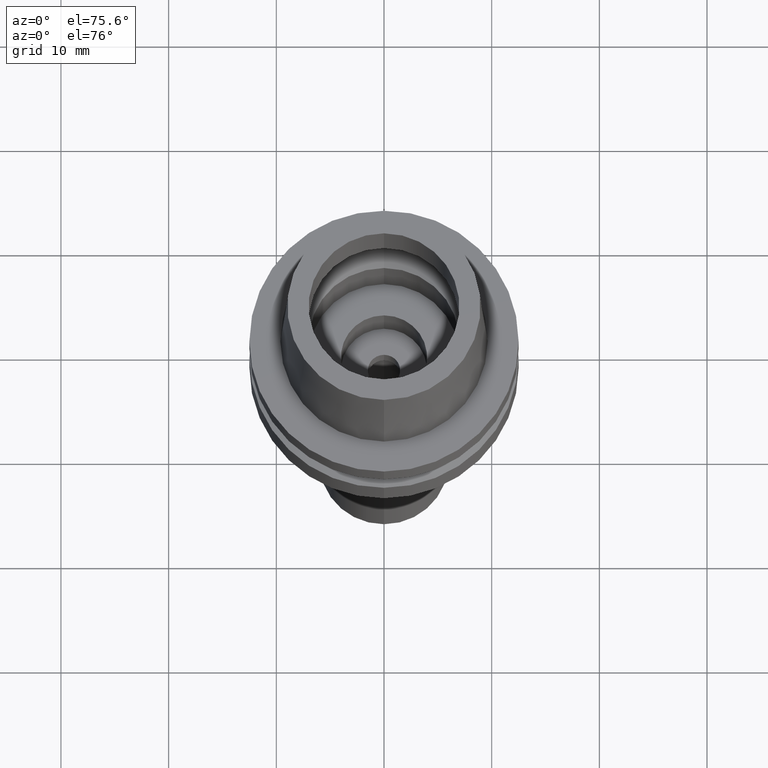
[diagram: clean part render]
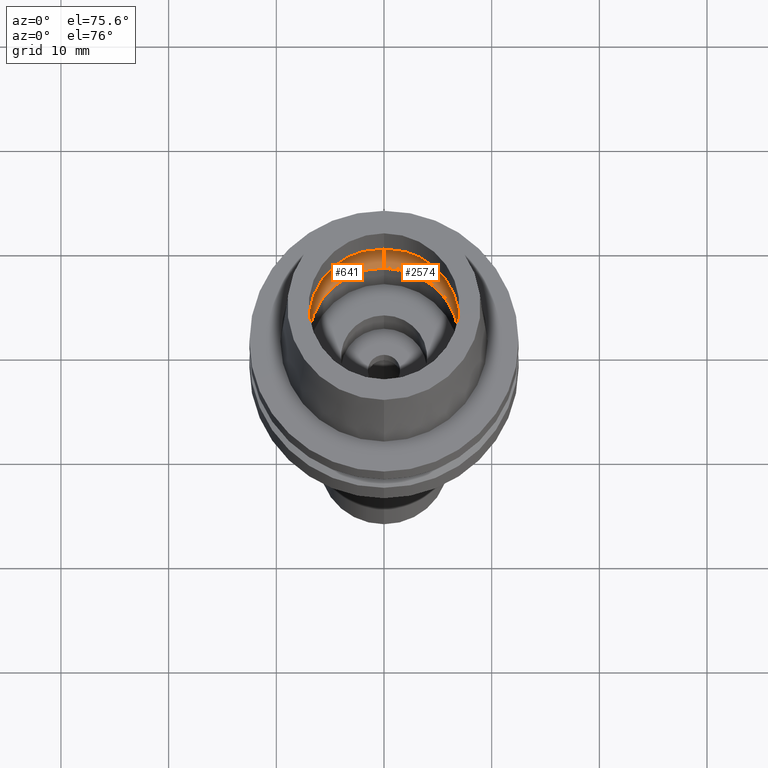
[diagram: same view with one multi-face feature highlighted, each face labeled with its STEP entity id]
A machine part, auxiliary view. The highlighted faces form ONE feature: a constant-radius fillet chain: 2 tangent blend faces with common blend radius 3 mm. The faces share edges in the B-rep.
Their STEP definitions:
[1] entity #641 (Torus):
#14 = ORIENTED_EDGE ( 'NONE', *, *, #1913, .F. ) ;
#164 = DIRECTION ( 'NONE',  ( 0.0000000000000000000, 0.0000000000000000000, 1.000000000000000000 ) ) ;
#183 = VERTEX_POINT ( 'NONE', #2657 ) ;
#197 = CARTESIAN_POINT ( 'NONE',  ( 0.0000000000000000000, 0.0000000000000000000, 2.449999999999999734 ) ) ;
#253 = EDGE_CURVE ( 'NONE', #183, #1187, #1900, .T. ) ;
#318 = CIRCLE ( 'NONE', #1459, 3.000000000000000000 ) ;
#401 = VERTEX_POINT ( 'NONE', #2530 ) ;
#436 = DIRECTION ( 'NONE',  ( 0.0000000000000000000, 0.0000000000000000000, 1.000000000000000000 ) ) ;
#570 = ORIENTED_EDGE ( 'NONE', *, *, #253, .F. ) ;
#641 = ADVANCED_FACE ( 'NONE', ( #1247 ), #1249, .F. ) ;
#731 = CARTESIAN_POINT ( 'NONE',  ( 0.0000000000000000000, -7.000000000000000000, 0.05000000000000000278 ) ) ;
#735 = CARTESIAN_POINT ( 'NONE',  ( 0.0000000000000000000, -8.200000000000001066, 2.449999999999999734 ) ) ;
#745 = DIRECTION ( 'NONE',  ( 1.000000000000000000, 0.0000000000000000000, 0.0000000000000000000 ) ) ;
#974 = EDGE_LOOP ( 'NONE', ( #1175, #14, #570, #1112 ) ) ;
#1023 = DIRECTION ( 'NONE',  ( 0.0000000000000000000, 1.000000000000000000, 0.0000000000000000000 ) ) ;
#1036 = AXIS2_PLACEMENT_3D ( 'NONE', #1992, #745, #1801 ) ;
#1048 = EDGE_CURVE ( 'NONE', #183, #401, #1861, .T. ) ;
#1112 = ORIENTED_EDGE ( 'NONE', *, *, #1048, .T. ) ;
#1131 = EDGE_CURVE ( 'NONE', #2453, #401, #1549, .T. ) ;
#1175 = ORIENTED_EDGE ( 'NONE', *, *, #1131, .F. ) ;
#1178 = DIRECTION ( 'NONE',  ( 0.0000000000000000000, 0.0000000000000000000, -1.000000000000000000 ) ) ;
#1187 = VERTEX_POINT ( 'NONE', #731 ) ;
#1247 = FACE_OUTER_BOUND ( 'NONE', #974, .T. ) ;
#1249 = TOROIDAL_SURFACE ( 'NONE', #2124, 5.200000000000000178, 3.000000000000000000 ) ;
#1459 = AXIS2_PLACEMENT_3D ( 'NONE', #1485, #2082, #2494 ) ;
#1485 = CARTESIAN_POINT ( 'NONE',  ( 0.0000000000000000000, -5.200000000000000178, 2.449999999999999734 ) ) ;
#1549 = CIRCLE ( 'NONE', #2211, 8.200000000000001066 ) ;
#1775 = CARTESIAN_POINT ( 'NONE',  ( 0.0000000000000000000, 0.0000000000000000000, 2.449999999999999734 ) ) ;
#1801 = DIRECTION ( 'NONE',  ( 0.0000000000000000000, 0.5999999999999998668, -0.8000000000000001554 ) ) ;
#1861 = CIRCLE ( 'NONE', #1036, 3.000000000000000000 ) ;
#1900 = CIRCLE ( 'NONE', #2362, 7.000000000000000000 ) ;
#1913 = EDGE_CURVE ( 'NONE', #1187, #2453, #318, .T. ) ;
#1992 = CARTESIAN_POINT ( 'NONE',  ( 0.0000000000000000000, 5.200000000000000178, 2.449999999999999734 ) ) ;
#2082 = DIRECTION ( 'NONE',  ( -1.000000000000000000, 0.0000000000000000000, 0.0000000000000000000 ) ) ;
#2124 = AXIS2_PLACEMENT_3D ( 'NONE', #197, #436, #2261 ) ;
#2211 = AXIS2_PLACEMENT_3D ( 'NONE', #1775, #1178, #2595 ) ;
#2261 = DIRECTION ( 'NONE',  ( 0.0000000000000000000, 1.000000000000000000, 0.0000000000000000000 ) ) ;
#2362 = AXIS2_PLACEMENT_3D ( 'NONE', #2671, #164, #1023 ) ;
#2453 = VERTEX_POINT ( 'NONE', #735 ) ;
#2494 = DIRECTION ( 'NONE',  ( 0.0000000000000000000, -0.5999999999999998668, -0.8000000000000001554 ) ) ;
#2530 = CARTESIAN_POINT ( 'NONE',  ( 0.0000000000000000000, 8.200000000000001066, 2.449999999999999734 ) ) ;
#2595 = DIRECTION ( 'NONE',  ( 0.0000000000000000000, -1.000000000000000000, 0.0000000000000000000 ) ) ;
#2657 = CARTESIAN_POINT ( 'NONE',  ( 0.0000000000000000000, 7.000000000000000000, 0.05000000000000000278 ) ) ;
#2671 = CARTESIAN_POINT ( 'NONE',  ( 0.0000000000000000000, 0.0000000000000000000, 0.05000000000000000278 ) ) ;
[2] entity #2574 (Torus):
#73 = FACE_OUTER_BOUND ( 'NONE', #77, .T. ) ;
#77 = EDGE_LOOP ( 'NONE', ( #333, #1877, #443, #602 ) ) ;
#85 = AXIS2_PLACEMENT_3D ( 'NONE', #519, #2182, #1576 ) ;
#183 = VERTEX_POINT ( 'NONE', #2657 ) ;
#318 = CIRCLE ( 'NONE', #1459, 3.000000000000000000 ) ;
#333 = ORIENTED_EDGE ( 'NONE', *, *, #1049, .F. ) ;
#380 = CIRCLE ( 'NONE', #1076, 7.000000000000000000 ) ;
#401 = VERTEX_POINT ( 'NONE', #2530 ) ;
#443 = ORIENTED_EDGE ( 'NONE', *, *, #1794, .F. ) ;
#519 = CARTESIAN_POINT ( 'NONE',  ( 0.0000000000000000000, 0.0000000000000000000, 2.449999999999999734 ) ) ;
#602 = ORIENTED_EDGE ( 'NONE', *, *, #1048, .F. ) ;
#731 = CARTESIAN_POINT ( 'NONE',  ( 0.0000000000000000000, -7.000000000000000000, 0.05000000000000000278 ) ) ;
#735 = CARTESIAN_POINT ( 'NONE',  ( 0.0000000000000000000, -8.200000000000001066, 2.449999999999999734 ) ) ;
#745 = DIRECTION ( 'NONE',  ( 1.000000000000000000, 0.0000000000000000000, 0.0000000000000000000 ) ) ;
#884 = TOROIDAL_SURFACE ( 'NONE', #85, 5.200000000000000178, 3.000000000000000000 ) ;
#1036 = AXIS2_PLACEMENT_3D ( 'NONE', #1992, #745, #1801 ) ;
#1048 = EDGE_CURVE ( 'NONE', #183, #401, #1861, .T. ) ;
#1049 = EDGE_CURVE ( 'NONE', #1187, #183, #380, .T. ) ;
#1076 = AXIS2_PLACEMENT_3D ( 'NONE', #1759, #1596, #2644 ) ;
#1172 = DIRECTION ( 'NONE',  ( 0.0000000000000000000, 0.0000000000000000000, -1.000000000000000000 ) ) ;
#1187 = VERTEX_POINT ( 'NONE', #731 ) ;
#1335 = CIRCLE ( 'NONE', #1945, 8.200000000000001066 ) ;
#1459 = AXIS2_PLACEMENT_3D ( 'NONE', #1485, #2082, #2494 ) ;
#1485 = CARTESIAN_POINT ( 'NONE',  ( 0.0000000000000000000, -5.200000000000000178, 2.449999999999999734 ) ) ;
#1576 = DIRECTION ( 'NONE',  ( 0.0000000000000000000, 1.000000000000000000, 0.0000000000000000000 ) ) ;
#1596 = DIRECTION ( 'NONE',  ( 0.0000000000000000000, 0.0000000000000000000, 1.000000000000000000 ) ) ;
#1759 = CARTESIAN_POINT ( 'NONE',  ( 0.0000000000000000000, 0.0000000000000000000, 0.05000000000000000278 ) ) ;
#1794 = EDGE_CURVE ( 'NONE', #401, #2453, #1335, .T. ) ;
#1801 = DIRECTION ( 'NONE',  ( 0.0000000000000000000, 0.5999999999999998668, -0.8000000000000001554 ) ) ;
#1831 = CARTESIAN_POINT ( 'NONE',  ( 0.0000000000000000000, 0.0000000000000000000, 2.449999999999999734 ) ) ;
#1861 = CIRCLE ( 'NONE', #1036, 3.000000000000000000 ) ;
#1877 = ORIENTED_EDGE ( 'NONE', *, *, #1913, .T. ) ;
#1913 = EDGE_CURVE ( 'NONE', #1187, #2453, #318, .T. ) ;
#1945 = AXIS2_PLACEMENT_3D ( 'NONE', #1831, #1172, #1998 ) ;
#1992 = CARTESIAN_POINT ( 'NONE',  ( 0.0000000000000000000, 5.200000000000000178, 2.449999999999999734 ) ) ;
#1998 = DIRECTION ( 'NONE',  ( 0.0000000000000000000, 1.000000000000000000, 0.0000000000000000000 ) ) ;
#2082 = DIRECTION ( 'NONE',  ( -1.000000000000000000, 0.0000000000000000000, 0.0000000000000000000 ) ) ;
#2182 = DIRECTION ( 'NONE',  ( 0.0000000000000000000, 0.0000000000000000000, 1.000000000000000000 ) ) ;
#2453 = VERTEX_POINT ( 'NONE', #735 ) ;
#2494 = DIRECTION ( 'NONE',  ( 0.0000000000000000000, -0.5999999999999998668, -0.8000000000000001554 ) ) ;
#2530 = CARTESIAN_POINT ( 'NONE',  ( 0.0000000000000000000, 8.200000000000001066, 2.449999999999999734 ) ) ;
#2574 = ADVANCED_FACE ( 'NONE', ( #73 ), #884, .F. ) ;
#2644 = DIRECTION ( 'NONE',  ( 0.0000000000000000000, -1.000000000000000000, 0.0000000000000000000 ) ) ;
#2657 = CARTESIAN_POINT ( 'NONE',  ( 0.0000000000000000000, 7.000000000000000000, 0.05000000000000000278 ) ) ;